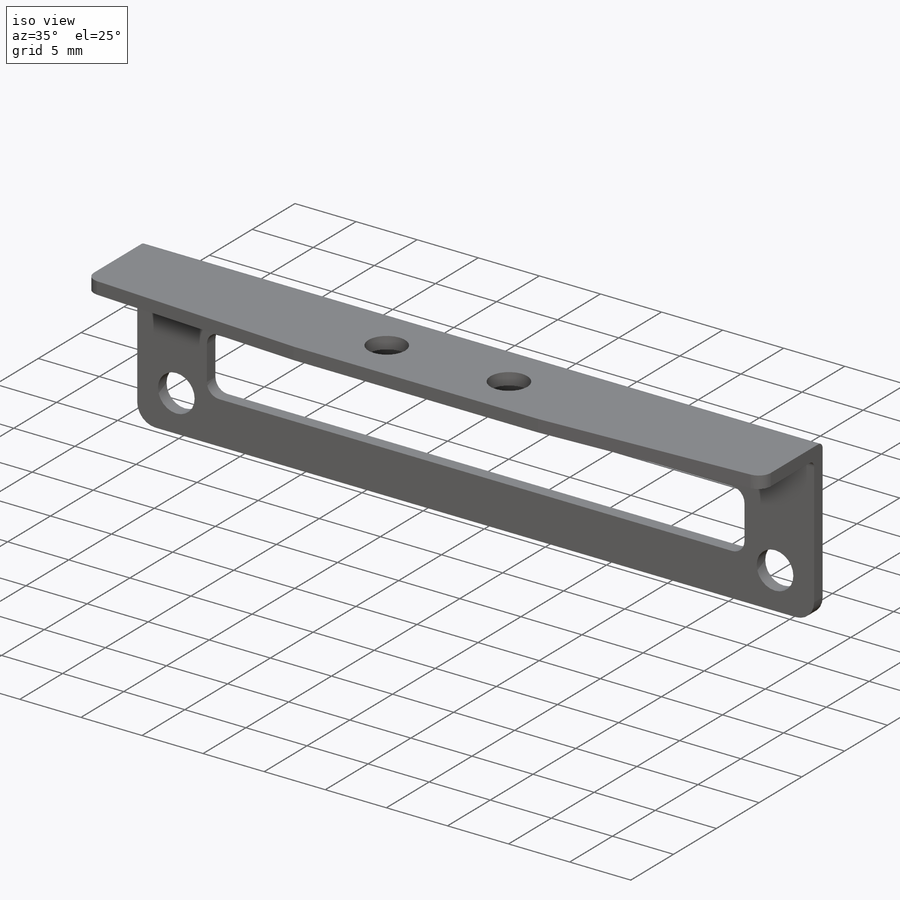
[diagram: iso view]
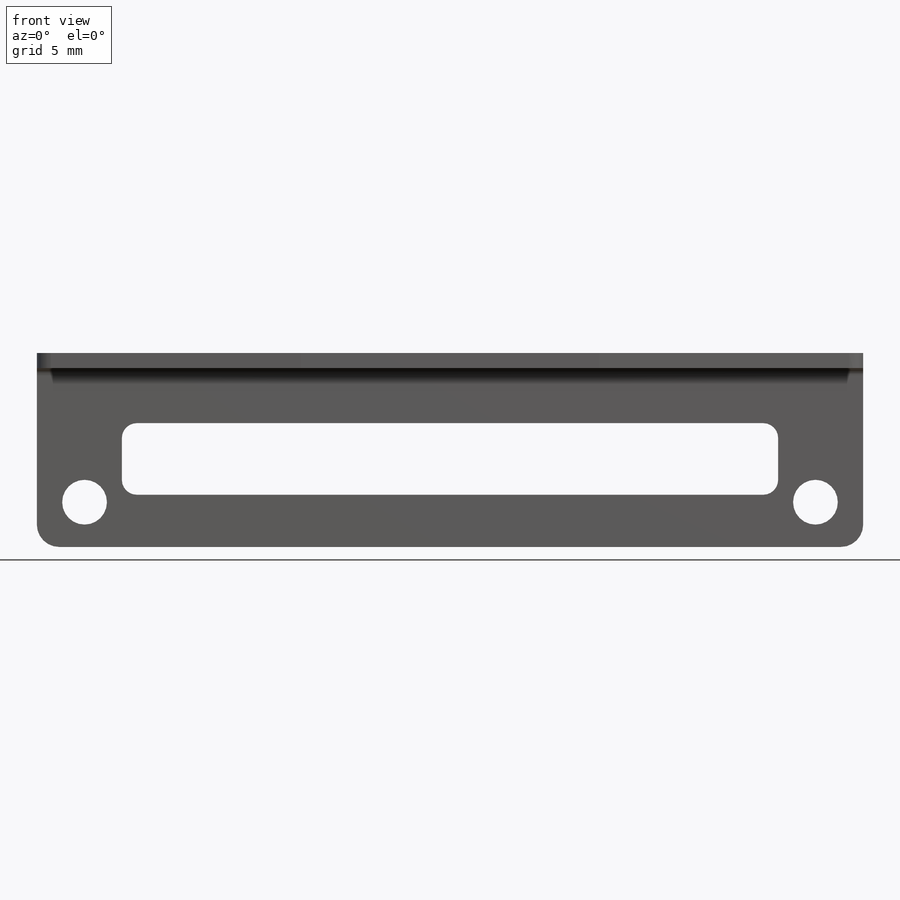
[diagram: front view]
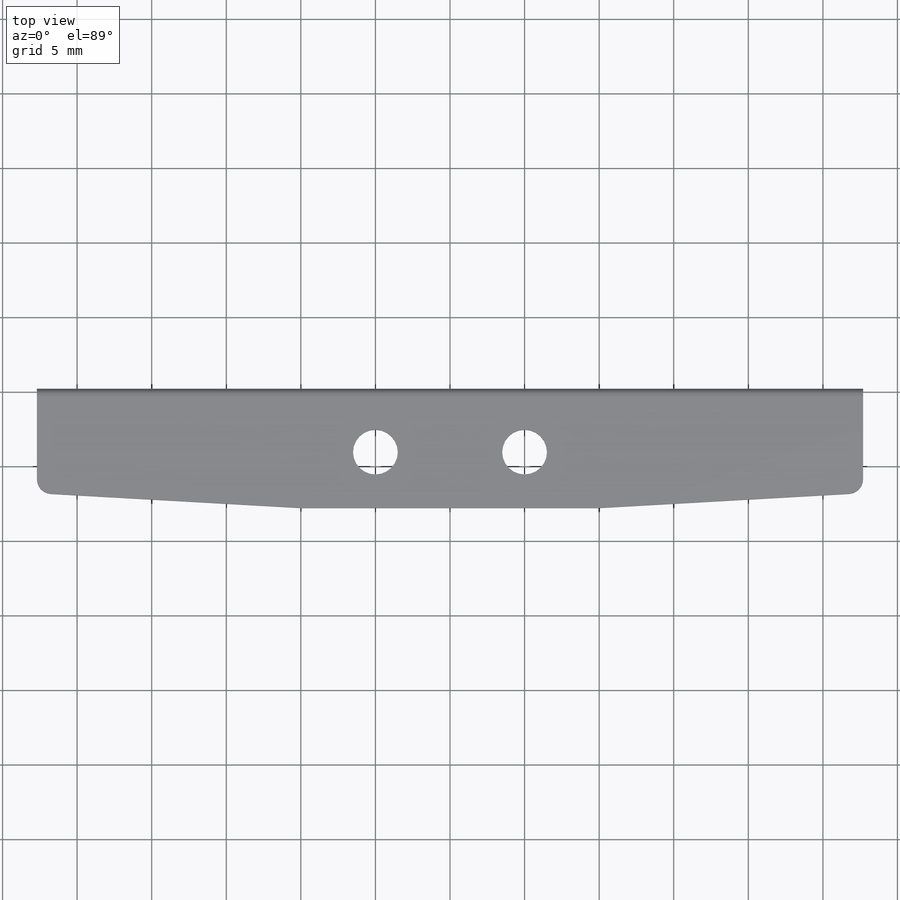
[diagram: top view]
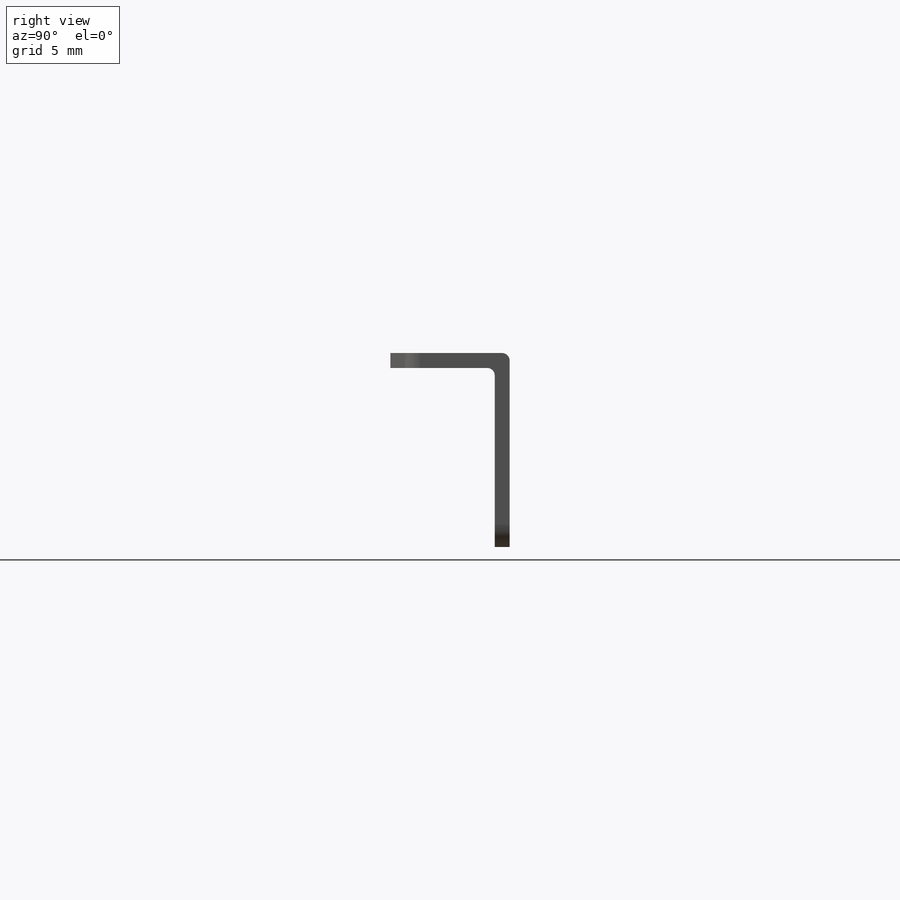
[diagram: right view]
SOLIDWORKS PART (.sldprt)
format: sldprt  version: not decoded by parser v0  size: 279,040 bytes
history: native  units: mm
features: sketch x4, fillet x4, plane x3, extrude x2, cut_extrude x2, material x1 (+10 scaffold rows collapsed)
feature tree (26):
  scaffold x10  (default folders/planes/origin — collapsed)
  material  "材质 <未指定>"
  plane  "前视基准面"
  plane  "上视基准面"
  plane  "右视基准面"
  sketch  "草图1"  dims[c1.D1=3.0mm c1.D2=3.0mm c1.D10=5.0mm c2.D2=~28.043478mm c2.D3=49.0mm c2.D4=3.5mm c2.D5=55.4mm c2.D6=3.5mm c2.D7=6.0mm c2.D8=39.0mm c2.D9=13.0mm c3.D8=1.75mm c3.D6=~37.287118mm c4.D6=90.0deg c5.D6=44.0mm c5.D7=4.8mm c5.D8=3.5mm c5.D4=10.0mm]
  extrude  "凸台-拉伸1"  Depth=1mm
  sketch  "草图2"  dims[D1=1.0mm]
  extrude  "凸台-拉伸2"  Depth=7mm
  sketch  "草图3"  dims[D1=20.0mm D2=6.0mm]
  cut_extrude  "切除-拉伸1"  [1 undecoded]
  sketch  "草图4"  dims[D3=3.0mm D4=3.0mm D1=3.75mm D2=10.0mm]
  cut_extrude  "切除-拉伸2"  [1 undecoded]
  fillet  "圆角1"  Radius=0.5mm
  fillet  "圆角2"  Radius=1mm
  fillet  "圆角3"  Radius=1.5mm
  fillet  "圆角4"  Radius=1mm
decode coverage: 10 of 12 modeling features carry decoded parameters
note: ~ marks probable driven/reference dimensions
note: 2 parameter values undecoded
note: suppression state not decoded; provenance and decode notes live in map.json
